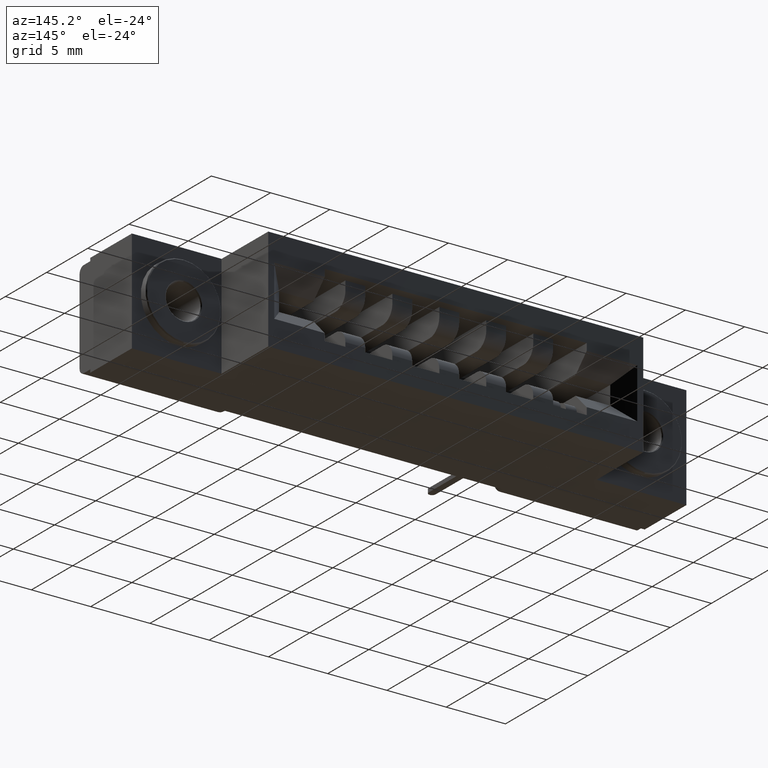
[diagram: clean part render]
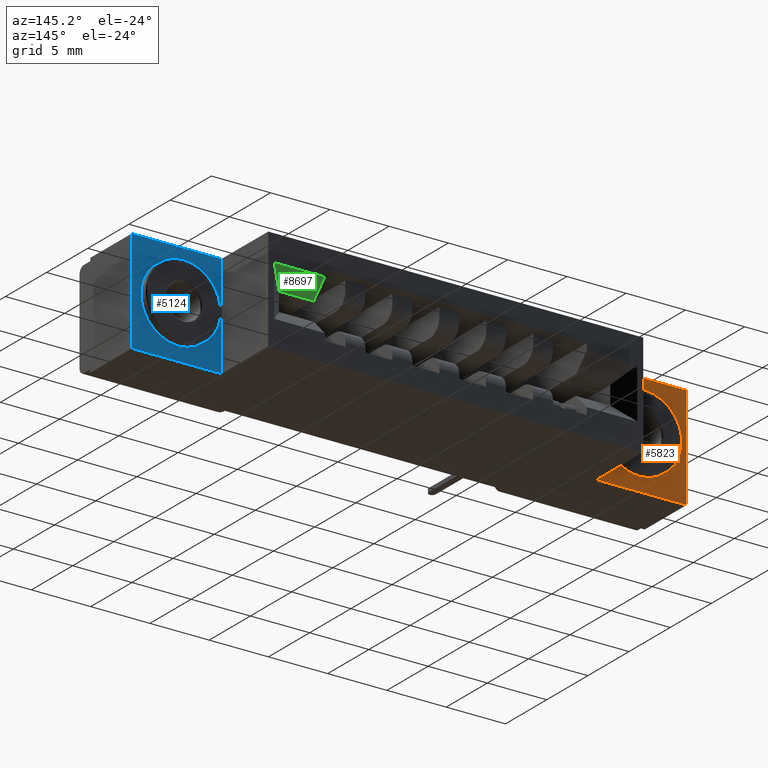
[diagram: same view with three faces highlighted in distinct colors, each labeled with its STEP entity id]
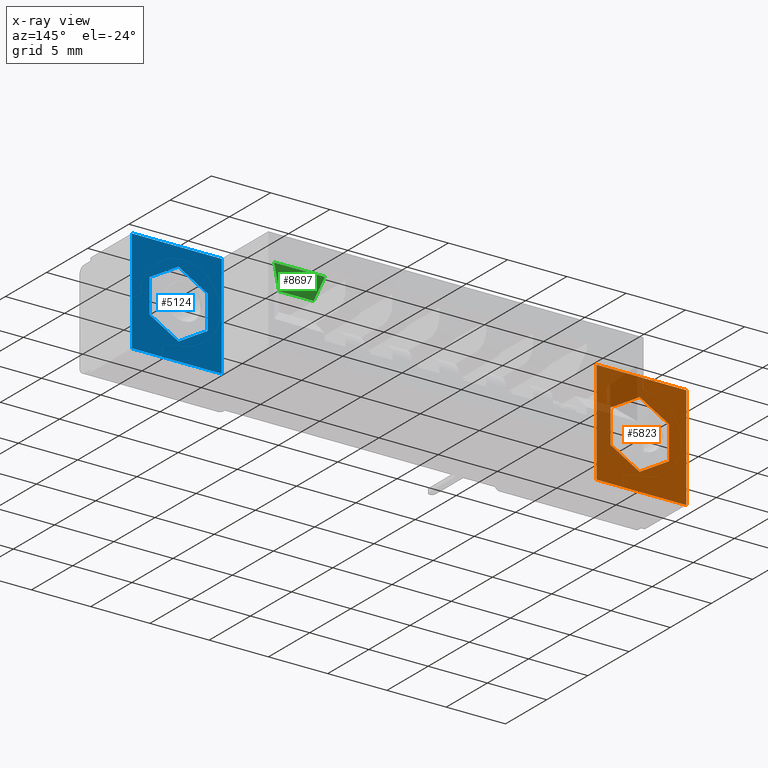
[diagram: x-ray of the same camera — body ghosted, the three highlighted faces saturated]
A machine part, auxiliary view with three faces highlighted in distinct colors.
The next image is the same camera in x-ray (body ghosted, the three faces saturated) — at least one of them is partly hidden behind the body in this view.
Their STEP definitions:

[orange] entity #5823 — the highlighted planar face has unit normal (0, 1, 0).
#14 = LINE ( 'NONE', #10389, #10248 ) ;
#84 = VERTEX_POINT ( 'NONE', #1281 ) ;
#123 = EDGE_CURVE ( 'NONE', #4408, #8804, #6023, .T. ) ;
#168 = EDGE_CURVE ( 'NONE', #751, #9090, #7149, .T. ) ;
#253 = CARTESIAN_POINT ( 'NONE',  ( 0.2515000000000003900, 0.2499999999999999700, -0.2272143009767991200 ) ) ;
#567 = CARTESIAN_POINT ( 'NONE',  ( 0.1550000000000003600, 0.2499999999999999700, -0.06007139804640241500 ) ) ;
#649 = VECTOR ( 'NONE', #4070, 39.37007874015748100 ) ;
#651 = CARTESIAN_POINT ( 'NONE',  ( 0.1550000000000003300, 0.2499999999999999700, -0.2829286019535979800 ) ) ;
#670 = VERTEX_POINT ( 'NONE', #5455 ) ;
#751 = VERTEX_POINT ( 'NONE', #7536 ) ;
#773 = CARTESIAN_POINT ( 'NONE',  ( 0.1550000000000003600, 0.2499999999999999700, -0.2829286019535979800 ) ) ;
#1062 = DIRECTION ( 'NONE',  ( -0.8660254037844388200, 0.0000000000000000000, -0.4999999999999996100 ) ) ;
#1281 = CARTESIAN_POINT ( 'NONE',  ( 0.05850000000000035700, 0.2499999999999999700, -0.1157856990232012900 ) ) ;
#1295 = CARTESIAN_POINT ( 'NONE',  ( 0.2979999999999999900, 0.2499999999999999700, -3.560163420314651700E-016 ) ) ;
#1365 = ORIENTED_EDGE ( 'NONE', *, *, #3864, .F. ) ;
#2121 = EDGE_CURVE ( 'NONE', #9090, #5040, #3097, .T. ) ;
#2183 = CARTESIAN_POINT ( 'NONE',  ( 0.05850000000000035700, 0.2499999999999999700, -0.1157856990232012900 ) ) ;
#2391 = CARTESIAN_POINT ( 'NONE',  ( 0.2979999999999999900, 0.2499999999999999700, 0.0000000000000000000 ) ) ;
#2907 = ORIENTED_EDGE ( 'NONE', *, *, #6179, .T. ) ;
#3033 = ORIENTED_EDGE ( 'NONE', *, *, #9275, .F. ) ;
#3051 = VECTOR ( 'NONE', #8718, 39.37007874015748100 ) ;
#3097 = LINE ( 'NONE', #5399, #649 ) ;
#3331 = PLANE ( 'NONE',  #7765 ) ;
#3350 = VERTEX_POINT ( 'NONE', #4111 ) ;
#3470 = CARTESIAN_POINT ( 'NONE',  ( 0.0000000000000000000, 0.2499999999999999700, 0.0000000000000000000 ) ) ;
#3491 = DIRECTION ( 'NONE',  ( 0.0000000000000000000, 0.0000000000000000000, 1.000000000000000000 ) ) ;
#3521 = DIRECTION ( 'NONE',  ( 0.0000000000000000000, 1.000000000000000000, -0.0000000000000000000 ) ) ;
#3775 = EDGE_CURVE ( 'NONE', #670, #4271, #7131, .T. ) ;
#3864 = EDGE_CURVE ( 'NONE', #84, #8313, #6617, .T. ) ;
#4070 = DIRECTION ( 'NONE',  ( 1.000000000000000000, -0.0000000000000000000, 0.0000000000000000000 ) ) ;
#4111 = CARTESIAN_POINT ( 'NONE',  ( 0.2979999999999995400, 0.2499999999999999700, -0.3430000000000000300 ) ) ;
#4271 = VERTEX_POINT ( 'NONE', #10122 ) ;
#4408 = VERTEX_POINT ( 'NONE', #651 ) ;
#4485 = DIRECTION ( 'NONE',  ( -7.661430575747412900E-017, 0.0000000000000000000, 1.000000000000000000 ) ) ;
#4590 = ORIENTED_EDGE ( 'NONE', *, *, #2121, .T. ) ;
#4703 = ORIENTED_EDGE ( 'NONE', *, *, #10288, .F. ) ;
#4714 = CARTESIAN_POINT ( 'NONE',  ( 0.05850000000000036400, 0.2499999999999999700, -0.2272143009767991200 ) ) ;
#5000 = VECTOR ( 'NONE', #8487, 39.37007874015748100 ) ;
#5040 = VERTEX_POINT ( 'NONE', #2391 ) ;
#5239 = EDGE_LOOP ( 'NONE', ( #4590, #8801, #2907, #9320 ) ) ;
#5399 = CARTESIAN_POINT ( 'NONE',  ( 0.0000000000000000000, 0.2499999999999999700, 0.0000000000000000000 ) ) ;
#5435 = DIRECTION ( 'NONE',  ( -0.8660254037844388200, 0.0000000000000000000, 0.4999999999999997200 ) ) ;
#5455 = CARTESIAN_POINT ( 'NONE',  ( 0.2515000000000003300, 0.2499999999999999700, -0.1157856990232012800 ) ) ;
#5765 = FACE_OUTER_BOUND ( 'NONE', #5239, .T. ) ;
#5823 = ADVANCED_FACE ( 'NONE', ( #8120, #5765 ), #3331, .T. ) ;
#5955 = EDGE_LOOP ( 'NONE', ( #4703, #9179, #3033, #1365, #7835, #8077 ) ) ;
#6023 = LINE ( 'NONE', #773, #7866 ) ;
#6049 = DIRECTION ( 'NONE',  ( 0.8660254037844386000, 0.0000000000000000000, 0.4999999999999998300 ) ) ;
#6179 = EDGE_CURVE ( 'NONE', #3350, #751, #14, .T. ) ;
#6316 = VECTOR ( 'NONE', #1062, 39.37007874015748900 ) ;
#6340 = VECTOR ( 'NONE', #9437, 39.37007874015748900 ) ;
#6427 = CARTESIAN_POINT ( 'NONE',  ( 0.0000000000000000000, 0.2499999999999999700, 0.0000000000000000000 ) ) ;
#6617 = LINE ( 'NONE', #2183, #8458 ) ;
#6717 = VECTOR ( 'NONE', #4485, 39.37007874015748100 ) ;
#6817 = EDGE_CURVE ( 'NONE', #5040, #3350, #8222, .T. ) ;
#7131 = LINE ( 'NONE', #8707, #3051 ) ;
#7149 = LINE ( 'NONE', #6427, #5000 ) ;
#7302 = CARTESIAN_POINT ( 'NONE',  ( 0.1550000000000003600, 0.2499999999999999700, -0.06007139804640241500 ) ) ;
#7536 = CARTESIAN_POINT ( 'NONE',  ( 0.0000000000000000000, 0.2499999999999999700, -0.3430000000000000300 ) ) ;
#7676 = CARTESIAN_POINT ( 'NONE',  ( 0.05850000000000036400, 0.2499999999999999700, -0.2272143009767991200 ) ) ;
#7765 = AXIS2_PLACEMENT_3D ( 'NONE', #3470, #3521, #3491 ) ;
#7789 = EDGE_CURVE ( 'NONE', #8804, #84, #8780, .T. ) ;
#7835 = ORIENTED_EDGE ( 'NONE', *, *, #7789, .F. ) ;
#7866 = VECTOR ( 'NONE', #5435, 39.37007874015748100 ) ;
#7973 = VECTOR ( 'NONE', #9472, 39.37007874015748100 ) ;
#8077 = ORIENTED_EDGE ( 'NONE', *, *, #123, .F. ) ;
#8120 = FACE_BOUND ( 'NONE', #5955, .T. ) ;
#8173 = LINE ( 'NONE', #253, #6316 ) ;
#8222 = LINE ( 'NONE', #1295, #7973 ) ;
#8313 = VERTEX_POINT ( 'NONE', #7302 ) ;
#8443 = LINE ( 'NONE', #567, #6340 ) ;
#8458 = VECTOR ( 'NONE', #6049, 39.37007874015748900 ) ;
#8487 = DIRECTION ( 'NONE',  ( 0.0000000000000000000, 0.0000000000000000000, 1.000000000000000000 ) ) ;
#8707 = CARTESIAN_POINT ( 'NONE',  ( 0.2515000000000003300, 0.2499999999999999700, -0.1157856990232012800 ) ) ;
#8718 = DIRECTION ( 'NONE',  ( 3.064572230298964700E-016, 0.0000000000000000000, -1.000000000000000000 ) ) ;
#8780 = LINE ( 'NONE', #7676, #6717 ) ;
#8801 = ORIENTED_EDGE ( 'NONE', *, *, #6817, .T. ) ;
#8804 = VERTEX_POINT ( 'NONE', #4714 ) ;
#9008 = CARTESIAN_POINT ( 'NONE',  ( 0.0000000000000000000, 0.2499999999999999700, 0.0000000000000000000 ) ) ;
#9090 = VERTEX_POINT ( 'NONE', #9008 ) ;
#9179 = ORIENTED_EDGE ( 'NONE', *, *, #3775, .F. ) ;
#9275 = EDGE_CURVE ( 'NONE', #8313, #670, #8443, .T. ) ;
#9320 = ORIENTED_EDGE ( 'NONE', *, *, #168, .T. ) ;
#9437 = DIRECTION ( 'NONE',  ( 0.8660254037844386000, 0.0000000000000000000, -0.4999999999999998300 ) ) ;
#9472 = DIRECTION ( 'NONE',  ( -1.194685711514983800E-015, 0.0000000000000000000, -1.000000000000000000 ) ) ;
#10122 = CARTESIAN_POINT ( 'NONE',  ( 0.2515000000000003900, 0.2499999999999999700, -0.2272143009767991200 ) ) ;
#10168 = DIRECTION ( 'NONE',  ( -1.000000000000000000, 0.0000000000000000000, 0.0000000000000000000 ) ) ;
#10248 = VECTOR ( 'NONE', #10168, 39.37007874015748100 ) ;
#10288 = EDGE_CURVE ( 'NONE', #4271, #4408, #8173, .T. ) ;
#10389 = CARTESIAN_POINT ( 'NONE',  ( 0.0000000000000000000, 0.2499999999999999700, -0.3430000000000000300 ) ) ;

[blue] entity #5124 — the highlighted planar face has unit normal (0, 1, 0).
#248 = CARTESIAN_POINT ( 'NONE',  ( 1.590499999999999800, 0.2499999999999999700, -0.1157856990232013200 ) ) ;
#501 = ORIENTED_EDGE ( 'NONE', *, *, #9460, .T. ) ;
#730 = VECTOR ( 'NONE', #9829, 39.37007874015748100 ) ;
#796 = EDGE_CURVE ( 'NONE', #6213, #5975, #5617, .T. ) ;
#983 = LINE ( 'NONE', #8014, #1232 ) ;
#1059 = DIRECTION ( 'NONE',  ( 0.8660254037844388200, 0.0000000000000000000, 0.4999999999999995600 ) ) ;
#1098 = CARTESIAN_POINT ( 'NONE',  ( 1.841999999999999600, 0.2499999999999999700, -0.3430000000000000300 ) ) ;
#1162 = LINE ( 'NONE', #3722, #9487 ) ;
#1232 = VECTOR ( 'NONE', #6458, 39.37007874015748100 ) ;
#1261 = VECTOR ( 'NONE', #5377, 39.37007874015748100 ) ;
#1372 = VECTOR ( 'NONE', #1059, 39.37007874015748900 ) ;
#1424 = DIRECTION ( 'NONE',  ( 0.0000000000000000000, 0.0000000000000000000, -1.000000000000000000 ) ) ;
#1453 = CARTESIAN_POINT ( 'NONE',  ( 0.0000000000000000000, 0.2499999999999999700, 0.0000000000000000000 ) ) ;
#1549 = EDGE_CURVE ( 'NONE', #6213, #7370, #4706, .T. ) ;
#1625 = LINE ( 'NONE', #248, #1372 ) ;
#1812 = ORIENTED_EDGE ( 'NONE', *, *, #7052, .T. ) ;
#1834 = DIRECTION ( 'NONE',  ( -0.8660254037844388200, 0.0000000000000000000, 0.4999999999999998300 ) ) ;
#2167 = VERTEX_POINT ( 'NONE', #8462 ) ;
#2290 = VECTOR ( 'NONE', #1834, 39.37007874015748100 ) ;
#2430 = CARTESIAN_POINT ( 'NONE',  ( 0.0000000000000000000, 0.2499999999999999700, 0.0000000000000000000 ) ) ;
#2448 = EDGE_CURVE ( 'NONE', #8509, #8200, #1162, .T. ) ;
#2514 = VECTOR ( 'NONE', #3493, 39.37007874015748100 ) ;
#2528 = DIRECTION ( 'NONE',  ( 0.8660254037844384900, 0.0000000000000000000, -0.5000000000000002200 ) ) ;
#2558 = LINE ( 'NONE', #7151, #2290 ) ;
#2810 = CARTESIAN_POINT ( 'NONE',  ( 1.590499999999999800, 0.2499999999999999700, -0.1157856990232013200 ) ) ;
#3187 = DIRECTION ( 'NONE',  ( 0.0000000000000000000, 0.0000000000000000000, 1.000000000000000000 ) ) ;
#3493 = DIRECTION ( 'NONE',  ( 1.000000000000000000, -0.0000000000000000000, 0.0000000000000000000 ) ) ;
#3722 = CARTESIAN_POINT ( 'NONE',  ( 1.783499999999999600, 0.2499999999999999700, -0.1157856990232011000 ) ) ;
#3777 = VECTOR ( 'NONE', #5666, 39.37007874015748100 ) ;
#3813 = VECTOR ( 'NONE', #5066, 39.37007874015748100 ) ;
#3837 = AXIS2_PLACEMENT_3D ( 'NONE', #2430, #10403, #3187 ) ;
#3841 = CARTESIAN_POINT ( 'NONE',  ( 1.842000000000000100, 0.2499999999999999700, 0.0000000000000000000 ) ) ;
#3914 = VERTEX_POINT ( 'NONE', #6814 ) ;
#4072 = CARTESIAN_POINT ( 'NONE',  ( 1.783499999999999600, 0.2499999999999999700, -0.2272143009767991500 ) ) ;
#4248 = CARTESIAN_POINT ( 'NONE',  ( 0.0000000000000000000, 0.2499999999999999700, -0.3430000000000000300 ) ) ;
#4252 = FACE_OUTER_BOUND ( 'NONE', #6002, .T. ) ;
#4439 = EDGE_CURVE ( 'NONE', #2167, #5770, #9311, .T. ) ;
#4547 = CARTESIAN_POINT ( 'NONE',  ( 1.544000000000000300, 0.2499999999999999700, 0.0000000000000000000 ) ) ;
#4706 = LINE ( 'NONE', #1453, #2514 ) ;
#4984 = ORIENTED_EDGE ( 'NONE', *, *, #2448, .F. ) ;
#5015 = CARTESIAN_POINT ( 'NONE',  ( 1.783499999999999600, 0.2499999999999999700, -0.2272143009767991500 ) ) ;
#5066 = DIRECTION ( 'NONE',  ( -1.000000000000000000, 0.0000000000000000000, 0.0000000000000000000 ) ) ;
#5124 = ADVANCED_FACE ( 'NONE', ( #6403, #4252 ), #9620, .T. ) ;
#5238 = ORIENTED_EDGE ( 'NONE', *, *, #5908, .F. ) ;
#5267 = LINE ( 'NONE', #7056, #7404 ) ;
#5377 = DIRECTION ( 'NONE',  ( -7.964571410099899100E-016, 0.0000000000000000000, -1.000000000000000000 ) ) ;
#5496 = CARTESIAN_POINT ( 'NONE',  ( 1.687000000000000100, 0.2499999999999999700, -0.06007139804640240100 ) ) ;
#5617 = LINE ( 'NONE', #9905, #1261 ) ;
#5666 = DIRECTION ( 'NONE',  ( -0.8660254037844388200, 0.0000000000000000000, -0.4999999999999998300 ) ) ;
#5733 = ORIENTED_EDGE ( 'NONE', *, *, #7114, .F. ) ;
#5770 = VERTEX_POINT ( 'NONE', #2810 ) ;
#5908 = EDGE_CURVE ( 'NONE', #6284, #8509, #5267, .T. ) ;
#5963 = LINE ( 'NONE', #4072, #3777 ) ;
#5971 = EDGE_CURVE ( 'NONE', #3914, #2167, #2558, .T. ) ;
#5975 = VERTEX_POINT ( 'NONE', #8139 ) ;
#5996 = VERTEX_POINT ( 'NONE', #1098 ) ;
#6002 = EDGE_LOOP ( 'NONE', ( #10475, #8816, #501, #1812 ) ) ;
#6213 = VERTEX_POINT ( 'NONE', #4547 ) ;
#6249 = ORIENTED_EDGE ( 'NONE', *, *, #5971, .F. ) ;
#6284 = VERTEX_POINT ( 'NONE', #5496 ) ;
#6403 = FACE_BOUND ( 'NONE', #9514, .T. ) ;
#6458 = DIRECTION ( 'NONE',  ( 0.0000000000000000000, 0.0000000000000000000, -1.000000000000000000 ) ) ;
#6814 = CARTESIAN_POINT ( 'NONE',  ( 1.687000000000000100, 0.2499999999999999700, -0.2829286019535980900 ) ) ;
#7052 = EDGE_CURVE ( 'NONE', #5996, #5975, #8084, .T. ) ;
#7056 = CARTESIAN_POINT ( 'NONE',  ( 1.687000000000000100, 0.2499999999999999700, -0.06007139804640240100 ) ) ;
#7114 = EDGE_CURVE ( 'NONE', #5770, #6284, #1625, .T. ) ;
#7151 = CARTESIAN_POINT ( 'NONE',  ( 1.686999999999999800, 0.2499999999999999700, -0.2829286019535979800 ) ) ;
#7370 = VERTEX_POINT ( 'NONE', #3841 ) ;
#7404 = VECTOR ( 'NONE', #2528, 39.37007874015749600 ) ;
#7564 = CARTESIAN_POINT ( 'NONE',  ( 1.783499999999999600, 0.2499999999999999700, -0.1157856990232011000 ) ) ;
#7847 = ORIENTED_EDGE ( 'NONE', *, *, #4439, .F. ) ;
#8014 = CARTESIAN_POINT ( 'NONE',  ( 1.842000000000000100, 0.2499999999999999700, 0.0000000000000000000 ) ) ;
#8084 = LINE ( 'NONE', #4248, #3813 ) ;
#8139 = CARTESIAN_POINT ( 'NONE',  ( 1.544000000000000300, 0.2499999999999999700, -0.3430000000000000300 ) ) ;
#8200 = VERTEX_POINT ( 'NONE', #5015 ) ;
#8299 = CARTESIAN_POINT ( 'NONE',  ( 1.590499999999999800, 0.2499999999999999700, -0.2272143009767991500 ) ) ;
#8455 = ORIENTED_EDGE ( 'NONE', *, *, #10081, .F. ) ;
#8462 = CARTESIAN_POINT ( 'NONE',  ( 1.590499999999999800, 0.2499999999999999700, -0.2272143009767991500 ) ) ;
#8509 = VERTEX_POINT ( 'NONE', #7564 ) ;
#8816 = ORIENTED_EDGE ( 'NONE', *, *, #1549, .T. ) ;
#9311 = LINE ( 'NONE', #8299, #730 ) ;
#9460 = EDGE_CURVE ( 'NONE', #7370, #5996, #983, .T. ) ;
#9487 = VECTOR ( 'NONE', #1424, 39.37007874015748100 ) ;
#9514 = EDGE_LOOP ( 'NONE', ( #8455, #4984, #5238, #5733, #7847, #6249 ) ) ;
#9620 = PLANE ( 'NONE',  #3837 ) ;
#9829 = DIRECTION ( 'NONE',  ( 0.0000000000000000000, 0.0000000000000000000, 1.000000000000000000 ) ) ;
#9905 = CARTESIAN_POINT ( 'NONE',  ( 1.544000000000000300, 0.2499999999999999700, -1.229729825719424600E-015 ) ) ;
#10081 = EDGE_CURVE ( 'NONE', #8200, #3914, #5963, .T. ) ;
#10403 = DIRECTION ( 'NONE',  ( 0.0000000000000000000, 1.000000000000000000, -0.0000000000000000000 ) ) ;
#10475 = ORIENTED_EDGE ( 'NONE', *, *, #796, .F. ) ;

[green] entity #8697 — the highlighted planar face has unit normal (0, -0.7071, 0.7071).
#429 = ORIENTED_EDGE ( 'NONE', *, *, #8581, .F. ) ;
#504 = EDGE_CURVE ( 'NONE', #10400, #711, #8582, .T. ) ;
#711 = VERTEX_POINT ( 'NONE', #7058 ) ;
#1322 = CARTESIAN_POINT ( 'NONE',  ( 1.471000000000000800, 0.4200000000000003200, -0.1405000000000001200 ) ) ;
#1353 = LINE ( 'NONE', #1322, #7827 ) ;
#1379 = EDGE_LOOP ( 'NONE', ( #1418, #4123, #4893, #429 ) ) ;
#1418 = ORIENTED_EDGE ( 'NONE', *, *, #504, .F. ) ;
#2081 = CARTESIAN_POINT ( 'NONE',  ( 0.3709999999999996100, 0.4200000000000003200, -0.1405000000000001200 ) ) ;
#2444 = DIRECTION ( 'NONE',  ( 0.0000000000000000000, -0.7071067811865456900, -0.7071067811865493500 ) ) ;
#2683 = DIRECTION ( 'NONE',  ( -1.000000000000000000, 0.0000000000000000000, 0.0000000000000000000 ) ) ;
#2764 = LINE ( 'NONE', #2766, #6595 ) ;
#2766 = CARTESIAN_POINT ( 'NONE',  ( 0.3709999999999996100, 0.4200000000000003200, -0.1405000000000001200 ) ) ;
#2837 = AXIS2_PLACEMENT_3D ( 'NONE', #2081, #9351, #4574 ) ;
#2919 = PLANE ( 'NONE',  #2837 ) ;
#2933 = VECTOR ( 'NONE', #2683, 39.37007874015748100 ) ;
#3140 = EDGE_CURVE ( 'NONE', #8791, #10400, #3467, .T. ) ;
#3467 = LINE ( 'NONE', #5558, #2933 ) ;
#3613 = DIRECTION ( 'NONE',  ( 1.000000000000000000, 0.0000000000000000000, 0.0000000000000000000 ) ) ;
#4123 = ORIENTED_EDGE ( 'NONE', *, *, #3140, .F. ) ;
#4387 = VERTEX_POINT ( 'NONE', #6543 ) ;
#4574 = DIRECTION ( 'NONE',  ( 0.0000000000000000000, -0.7071067811865456900, -0.7071067811865493500 ) ) ;
#4640 = EDGE_CURVE ( 'NONE', #4387, #8791, #1353, .T. ) ;
#4893 = ORIENTED_EDGE ( 'NONE', *, *, #4640, .F. ) ;
#5414 = DIRECTION ( 'NONE',  ( 0.5773502691896267300, 0.5773502691896237300, 0.5773502691896267300 ) ) ;
#5558 = CARTESIAN_POINT ( 'NONE',  ( 0.0000000000000000000, 0.4729999999999999800, -0.08750000000000016100 ) ) ;
#5748 = VECTOR ( 'NONE', #2444, 39.37007874015748100 ) ;
#6543 = CARTESIAN_POINT ( 'NONE',  ( 1.471000000000000800, 0.4200000000000002100, -0.1405000000000001200 ) ) ;
#6595 = VECTOR ( 'NONE', #3613, 39.37007874015748100 ) ;
#6875 = CARTESIAN_POINT ( 'NONE',  ( 1.355999999999999700, 0.4729999999999999800, -0.08750000000000016100 ) ) ;
#7058 = CARTESIAN_POINT ( 'NONE',  ( 1.355999999999999700, 0.4200000000000003200, -0.1405000000000001200 ) ) ;
#7780 = CARTESIAN_POINT ( 'NONE',  ( 1.355999999999999700, 0.4200000000000003200, -0.1405000000000001200 ) ) ;
#7827 = VECTOR ( 'NONE', #5414, 39.37007874015748900 ) ;
#8581 = EDGE_CURVE ( 'NONE', #711, #4387, #2764, .T. ) ;
#8582 = LINE ( 'NONE', #7780, #5748 ) ;
#8697 = ADVANCED_FACE ( 'NONE', ( #9560 ), #2919, .F. ) ;
#8791 = VERTEX_POINT ( 'NONE', #10275 ) ;
#9351 = DIRECTION ( 'NONE',  ( 0.0000000000000000000, -0.7071067811865493500, 0.7071067811865456900 ) ) ;
#9560 = FACE_OUTER_BOUND ( 'NONE', #1379, .T. ) ;
#10275 = CARTESIAN_POINT ( 'NONE',  ( 1.524000000000000700, 0.4729999999999999800, -0.08750000000000016100 ) ) ;
#10400 = VERTEX_POINT ( 'NONE', #6875 ) ;